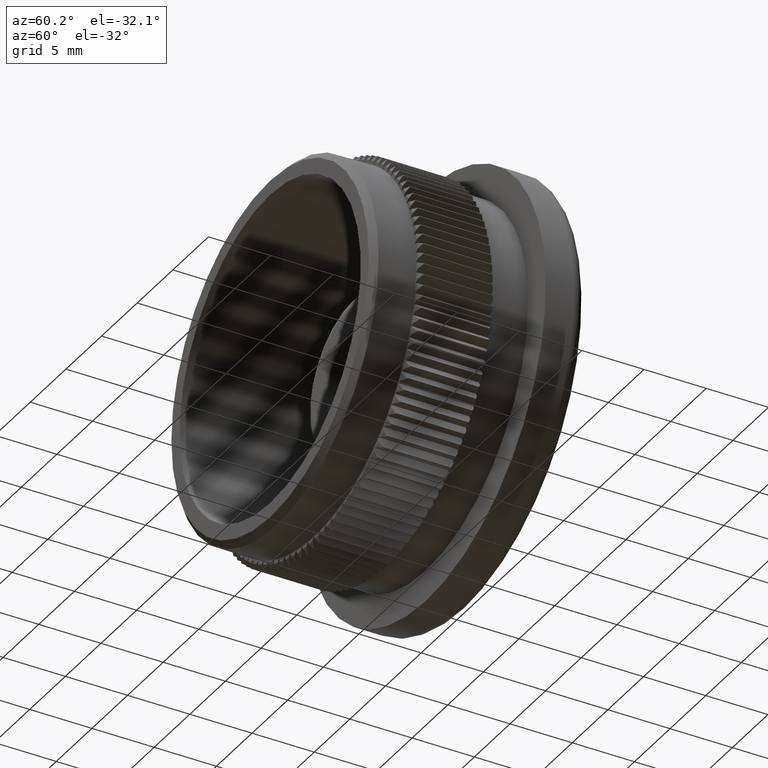
[diagram: clean part render]
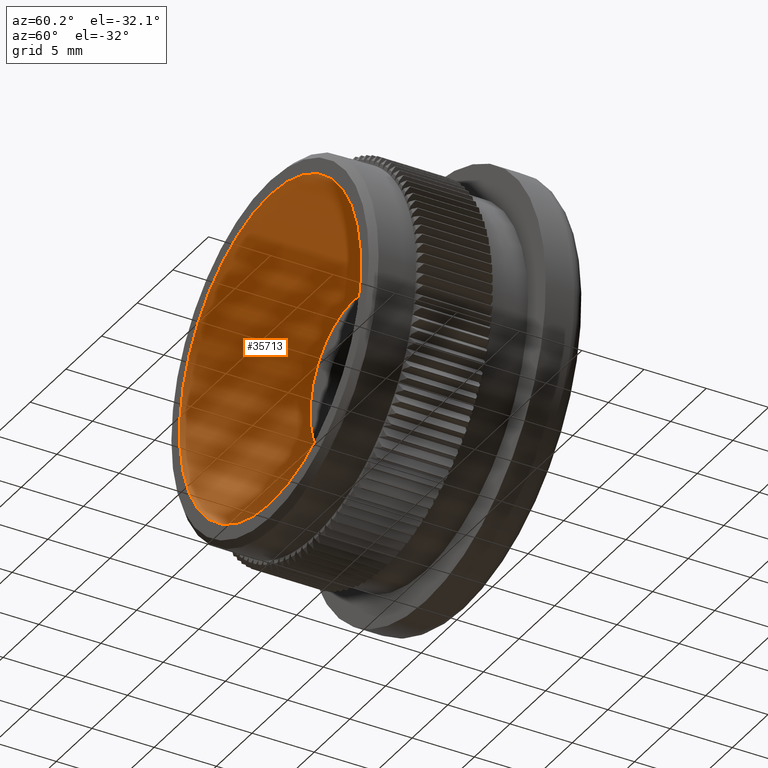
[diagram: same view with one face highlighted and labeled with its STEP entity id]
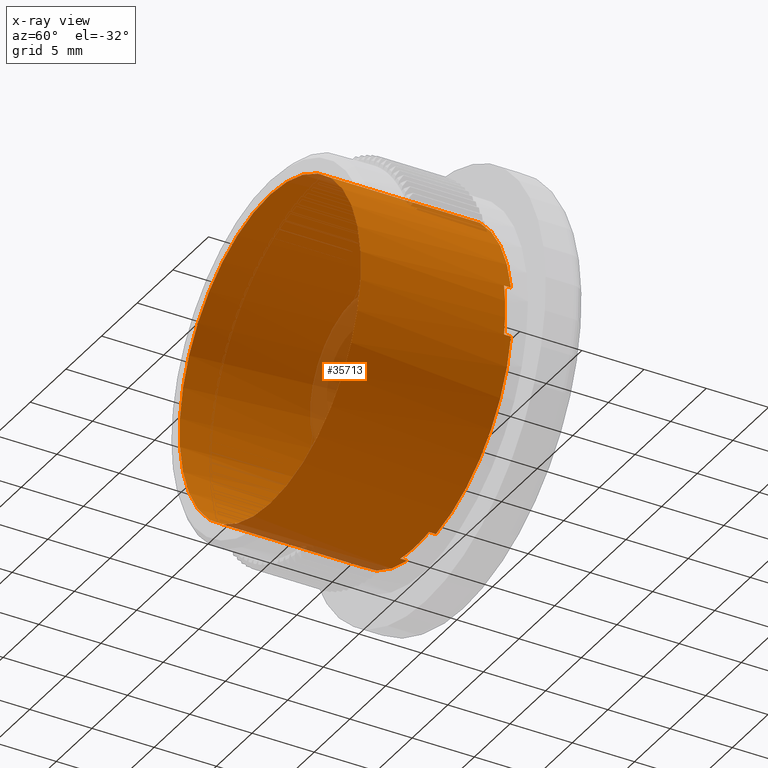
[diagram: x-ray of the same camera — body ghosted, the highlighted face saturated]
A machine part, auxiliary view. The second image highlights one B-rep face of the part: STEP entity #35713.
The next image is the same camera in x-ray: the body ghosted, the highlighted face saturated — about 4% of this face is hidden behind the body in this view.
In plain terms, the highlighted cylindrical surface (bore or boss wall) has radius 12.7 mm, axis along (-0, -1, -0).
Its self-contained STEP definition (entity closure, byte-faithful):
#191 = ORIENTED_EDGE ( 'NONE', *, *, #25303, .F. ) ;
#762 = VECTOR ( 'NONE', #6013, 1000.000000000000000 ) ;
#931 = DIRECTION ( 'NONE',  ( 0.0000000000000000000, 1.000000000000000000, 0.0000000000000000000 ) ) ;
#1438 = DIRECTION ( 'NONE',  ( 0.0000000000000000000, 0.0000000000000000000, -1.000000000000000000 ) ) ;
#1505 = CARTESIAN_POINT ( 'NONE',  ( -12.54023346826817000, 11.61928906477917600, -2.008119658119657200 ) ) ;
#1765 = CARTESIAN_POINT ( 'NONE',  ( 0.0000000000000000000, 12.17357016488715400, 0.0000000000000000000 ) ) ;
#1833 = CARTESIAN_POINT ( 'NONE',  ( 2.008119658119662500, 12.17357016488715400, 12.54023346826817900 ) ) ;
#2034 = CIRCLE ( 'NONE', #28945, 12.69999999999999000 ) ;
#2266 = ORIENTED_EDGE ( 'NONE', *, *, #7292, .T. ) ;
#2454 = DIRECTION ( 'NONE',  ( -0.0000000000000000000, -1.000000000000000000, -0.0000000000000000000 ) ) ;
#3006 = CARTESIAN_POINT ( 'NONE',  ( -12.54023346826817900, 15.50000000000000000, -2.008119658119658500 ) ) ;
#3869 = CARTESIAN_POINT ( 'NONE',  ( -12.54023346826817900, 11.61928906477917600, 2.008119658119658500 ) ) ;
#3899 = DIRECTION ( 'NONE',  ( -0.0000000000000000000, -1.000000000000000000, -0.0000000000000000000 ) ) ;
#4029 = CARTESIAN_POINT ( 'NONE',  ( 0.0000000000000000000, 0.0000000000000000000, 0.0000000000000000000 ) ) ;
#4063 = VERTEX_POINT ( 'NONE', #1833 ) ;
#4489 = ORIENTED_EDGE ( 'NONE', *, *, #36933, .T. ) ;
#5067 = ORIENTED_EDGE ( 'NONE', *, *, #27001, .F. ) ;
#5120 = DIRECTION ( 'NONE',  ( -0.0000000000000000000, -1.000000000000000000, -0.0000000000000000000 ) ) ;
#5187 = DIRECTION ( 'NONE',  ( 0.0000000000000000000, 1.000000000000000000, 0.0000000000000000000 ) ) ;
#5494 = CARTESIAN_POINT ( 'NONE',  ( 12.54023346826817900, 12.17357016488715400, 2.008119658119658500 ) ) ;
#5910 = DIRECTION ( 'NONE',  ( 0.0000000000000000000, 1.000000000000000000, 0.0000000000000000000 ) ) ;
#5931 = AXIS2_PLACEMENT_3D ( 'NONE', #1765, #34976, #16442 ) ;
#6012 = DIRECTION ( 'NONE',  ( 0.0000000000000000000, 0.0000000000000000000, -1.000000000000000000 ) ) ;
#6013 = DIRECTION ( 'NONE',  ( -0.0000000000000000000, -1.000000000000000000, -0.0000000000000000000 ) ) ;
#6270 = DIRECTION ( 'NONE',  ( 0.0000000000000000000, 0.0000000000000000000, -1.000000000000000000 ) ) ;
#6574 = CARTESIAN_POINT ( 'NONE',  ( 0.0000000000000000000, 11.61928906477917600, 0.0000000000000000000 ) ) ;
#6589 = CIRCLE ( 'NONE', #32563, 12.69999999999999900 ) ;
#6658 = ORIENTED_EDGE ( 'NONE', *, *, #24375, .T. ) ;
#7129 = CIRCLE ( 'NONE', #32555, 12.69999999999999000 ) ;
#7292 = EDGE_CURVE ( 'NONE', #36549, #8297, #32598, .T. ) ;
#7571 = AXIS2_PLACEMENT_3D ( 'NONE', #15302, #33821, #6270 ) ;
#8147 = AXIS2_PLACEMENT_3D ( 'NONE', #6574, #27182, #12483 ) ;
#8173 = DIRECTION ( 'NONE',  ( -0.0000000000000000000, -1.000000000000000000, -0.0000000000000000000 ) ) ;
#8297 = VERTEX_POINT ( 'NONE', #13056 ) ;
#8939 = CARTESIAN_POINT ( 'NONE',  ( 2.008119658119662100, 15.50000000000000000, -12.54023346826817900 ) ) ;
#9273 = EDGE_CURVE ( 'NONE', #4063, #24258, #31999, .T. ) ;
#9448 = VERTEX_POINT ( 'NONE', #17345 ) ;
#9759 = VECTOR ( 'NONE', #16856, 1000.000000000000000 ) ;
#9984 = CARTESIAN_POINT ( 'NONE',  ( 0.0000000000000000000, 12.17357016488715400, 0.0000000000000000000 ) ) ;
#10180 = CARTESIAN_POINT ( 'NONE',  ( -2.008119658119654500, 15.50000000000000000, 12.54023346826818000 ) ) ;
#10205 = LINE ( 'NONE', #11355, #9759 ) ;
#10584 = LINE ( 'NONE', #14920, #24683 ) ;
#10668 = VERTEX_POINT ( 'NONE', #3869 ) ;
#11355 = CARTESIAN_POINT ( 'NONE',  ( 12.54023346826817900, 15.50000000000000000, -2.008119658119658500 ) ) ;
#11464 = ORIENTED_EDGE ( 'NONE', *, *, #19561, .F. ) ;
#11531 = CARTESIAN_POINT ( 'NONE',  ( 0.0000000000000000000, 11.61928906477917600, 0.0000000000000000000 ) ) ;
#12083 = CARTESIAN_POINT ( 'NONE',  ( -2.008119658119654100, 15.50000000000000000, -12.54023346826818000 ) ) ;
#12483 = DIRECTION ( 'NONE',  ( 0.0000000000000000000, 0.0000000000000000000, -1.000000000000000000 ) ) ;
#12743 = EDGE_CURVE ( 'NONE', #31035, #16532, #21588, .T. ) ;
#12831 = CIRCLE ( 'NONE', #8147, 12.69999999999999000 ) ;
#12920 = VERTEX_POINT ( 'NONE', #28451 ) ;
#13056 = CARTESIAN_POINT ( 'NONE',  ( -2.008119658119655000, 12.17357016488715400, 12.54023346826818000 ) ) ;
#13293 = DIRECTION ( 'NONE',  ( 0.0000000000000000000, 1.000000000000000000, 0.0000000000000000000 ) ) ;
#13853 = AXIS2_PLACEMENT_3D ( 'NONE', #32629, #5187, #20533 ) ;
#14097 = VECTOR ( 'NONE', #5120, 1000.000000000000000 ) ;
#14873 = AXIS2_PLACEMENT_3D ( 'NONE', #4029, #3899, #33951 ) ;
#14920 = CARTESIAN_POINT ( 'NONE',  ( -12.54023346826817900, 15.50000000000000000, 2.008119658119658500 ) ) ;
#15031 = LINE ( 'NONE', #19944, #14097 ) ;
#15049 = AXIS2_PLACEMENT_3D ( 'NONE', #11531, #24033, #6012 ) ;
#15271 = CARTESIAN_POINT ( 'NONE',  ( -12.54023346826817900, 12.17357016488715400, -2.008119658119658500 ) ) ;
#15302 = CARTESIAN_POINT ( 'NONE',  ( 0.0000000000000000000, 15.50000000000000000, 0.0000000000000000000 ) ) ;
#15716 = VECTOR ( 'NONE', #5910, 1000.000000000000000 ) ;
#15929 = VERTEX_POINT ( 'NONE', #38329 ) ;
#15997 = FACE_OUTER_BOUND ( 'NONE', #28969, .T. ) ;
#16099 = ORIENTED_EDGE ( 'NONE', *, *, #21372, .F. ) ;
#16442 = DIRECTION ( 'NONE',  ( 8.881784197001252300E-016, 0.0000000000000000000, -1.000000000000000000 ) ) ;
#16532 = VERTEX_POINT ( 'NONE', #1505 ) ;
#16687 = LINE ( 'NONE', #8939, #762 ) ;
#16843 = CIRCLE ( 'NONE', #13853, 12.69999999999999900 ) ;
#16856 = DIRECTION ( 'NONE',  ( 0.0000000000000000000, 1.000000000000000000, 0.0000000000000000000 ) ) ;
#17345 = CARTESIAN_POINT ( 'NONE',  ( 12.54023346826817900, 11.61928906477917600, -2.008119658119658500 ) ) ;
#18240 = EDGE_CURVE ( 'NONE', #33156, #20108, #24681, .T. ) ;
#18714 = ORIENTED_EDGE ( 'NONE', *, *, #38239, .T. ) ;
#18869 = EDGE_CURVE ( 'NONE', #25217, #4063, #34505, .T. ) ;
#19561 = EDGE_CURVE ( 'NONE', #10668, #16532, #12831, .T. ) ;
#19944 = CARTESIAN_POINT ( 'NONE',  ( 12.54023346826817900, 15.50000000000000000, 2.008119658119658500 ) ) ;
#20100 = ORIENTED_EDGE ( 'NONE', *, *, #12743, .T. ) ;
#20108 = VERTEX_POINT ( 'NONE', #31323 ) ;
#20288 = DIRECTION ( 'NONE',  ( 0.0000000000000000000, 0.0000000000000000000, -1.000000000000000000 ) ) ;
#20533 = DIRECTION ( 'NONE',  ( -1.776356839400250500E-015, 0.0000000000000000000, -1.000000000000000000 ) ) ;
#20695 = CARTESIAN_POINT ( 'NONE',  ( -12.54023346826817900, 12.17357016488715400, 2.008119658119658500 ) ) ;
#21283 = ORIENTED_EDGE ( 'NONE', *, *, #30449, .T. ) ;
#21372 = EDGE_CURVE ( 'NONE', #9448, #30911, #7129, .T. ) ;
#21588 = LINE ( 'NONE', #3006, #34752 ) ;
#22326 = CARTESIAN_POINT ( 'NONE',  ( 0.0000000000000000000, 0.0000000000000000000, -12.69999999999999900 ) ) ;
#22504 = LINE ( 'NONE', #10180, #25342 ) ;
#23129 = CARTESIAN_POINT ( 'NONE',  ( 2.008119658119662500, 11.61928906477917600, 12.54023346826817900 ) ) ;
#23395 = EDGE_CURVE ( 'NONE', #9448, #12920, #10205, .T. ) ;
#23898 = DIRECTION ( 'NONE',  ( 0.0000000000000000000, 1.000000000000000000, 0.0000000000000000000 ) ) ;
#24033 = DIRECTION ( 'NONE',  ( -0.0000000000000000000, -1.000000000000000000, -0.0000000000000000000 ) ) ;
#24087 = CARTESIAN_POINT ( 'NONE',  ( -2.008119658119654100, 11.61928906477917600, 12.54023346826817200 ) ) ;
#24258 = VERTEX_POINT ( 'NONE', #5494 ) ;
#24350 = CIRCLE ( 'NONE', #14873, 12.69999999999999900 ) ;
#24375 = EDGE_CURVE ( 'NONE', #15929, #28855, #16687, .T. ) ;
#24681 = LINE ( 'NONE', #12083, #15716 ) ;
#24683 = VECTOR ( 'NONE', #23898, 1000.000000000000000 ) ;
#25217 = VERTEX_POINT ( 'NONE', #23129 ) ;
#25300 = EDGE_CURVE ( 'NONE', #10668, #36549, #10584, .T. ) ;
#25303 = EDGE_CURVE ( 'NONE', #33156, #28855, #30758, .T. ) ;
#25342 = VECTOR ( 'NONE', #25405, 1000.000000000000000 ) ;
#25349 = ORIENTED_EDGE ( 'NONE', *, *, #25300, .T. ) ;
#25405 = DIRECTION ( 'NONE',  ( -0.0000000000000000000, -1.000000000000000000, -0.0000000000000000000 ) ) ;
#26522 = VECTOR ( 'NONE', #28576, 1000.000000000000000 ) ;
#27001 = EDGE_CURVE ( 'NONE', #25217, #33353, #2034, .T. ) ;
#27182 = DIRECTION ( 'NONE',  ( -0.0000000000000000000, -1.000000000000000000, -0.0000000000000000000 ) ) ;
#27269 = FACE_OUTER_BOUND ( 'NONE', #36097, .T. ) ;
#27274 = DIRECTION ( 'NONE',  ( -0.0000000000000000000, -1.000000000000000000, -0.0000000000000000000 ) ) ;
#27989 = DIRECTION ( 'NONE',  ( 0.0000000000000000000, 0.0000000000000000000, -1.000000000000000000 ) ) ;
#28065 = VERTEX_POINT ( 'NONE', #22326 ) ;
#28451 = CARTESIAN_POINT ( 'NONE',  ( 12.54023346826817900, 12.17357016488715400, -2.008119658119658500 ) ) ;
#28576 = DIRECTION ( 'NONE',  ( 0.0000000000000000000, 1.000000000000000000, 0.0000000000000000000 ) ) ;
#28855 = VERTEX_POINT ( 'NONE', #36569 ) ;
#28945 = AXIS2_PLACEMENT_3D ( 'NONE', #28989, #2454, #20288 ) ;
#28969 = EDGE_LOOP ( 'NONE', ( #4489, #6658, #191, #37309, #29856, #20100, #11464, #25349, #2266, #35742, #5067, #35237, #30994, #21283, #16099, #31190 ) ) ;
#28989 = CARTESIAN_POINT ( 'NONE',  ( 0.0000000000000000000, 11.61928906477917600, 0.0000000000000000000 ) ) ;
#29856 = ORIENTED_EDGE ( 'NONE', *, *, #30646, .T. ) ;
#30449 = EDGE_CURVE ( 'NONE', #24258, #30911, #15031, .T. ) ;
#30646 = EDGE_CURVE ( 'NONE', #20108, #31035, #6589, .T. ) ;
#30758 = CIRCLE ( 'NONE', #15049, 12.69999999999999000 ) ;
#30911 = VERTEX_POINT ( 'NONE', #32642 ) ;
#30994 = ORIENTED_EDGE ( 'NONE', *, *, #9273, .T. ) ;
#31035 = VERTEX_POINT ( 'NONE', #15271 ) ;
#31190 = ORIENTED_EDGE ( 'NONE', *, *, #23395, .T. ) ;
#31323 = CARTESIAN_POINT ( 'NONE',  ( -2.008119658119654500, 12.17357016488715400, -12.54023346826818000 ) ) ;
#31950 = CARTESIAN_POINT ( 'NONE',  ( -2.008119658119654500, 11.61928906477917600, -12.54023346826818000 ) ) ;
#31999 = CIRCLE ( 'NONE', #5931, 12.69999999999999900 ) ;
#32555 = AXIS2_PLACEMENT_3D ( 'NONE', #38697, #8173, #35313 ) ;
#32563 = AXIS2_PLACEMENT_3D ( 'NONE', #9984, #931, #1438 ) ;
#32598 = CIRCLE ( 'NONE', #38078, 12.69999999999999900 ) ;
#32629 = CARTESIAN_POINT ( 'NONE',  ( 0.0000000000000000000, 12.17357016488715400, 0.0000000000000000000 ) ) ;
#32642 = CARTESIAN_POINT ( 'NONE',  ( 12.54023346826817000, 11.61928906477917600, 2.008119658119657200 ) ) ;
#33156 = VERTEX_POINT ( 'NONE', #31950 ) ;
#33353 = VERTEX_POINT ( 'NONE', #24087 ) ;
#33821 = DIRECTION ( 'NONE',  ( -0.0000000000000000000, -1.000000000000000000, -0.0000000000000000000 ) ) ;
#33951 = DIRECTION ( 'NONE',  ( 0.0000000000000000000, 0.0000000000000000000, -1.000000000000000000 ) ) ;
#34505 = LINE ( 'NONE', #37740, #26522 ) ;
#34752 = VECTOR ( 'NONE', #27274, 1000.000000000000000 ) ;
#34818 = CYLINDRICAL_SURFACE ( 'NONE', #7571, 12.69999999999999900 ) ;
#34976 = DIRECTION ( 'NONE',  ( 0.0000000000000000000, 1.000000000000000000, 0.0000000000000000000 ) ) ;
#35237 = ORIENTED_EDGE ( 'NONE', *, *, #18869, .T. ) ;
#35313 = DIRECTION ( 'NONE',  ( 0.0000000000000000000, 0.0000000000000000000, -1.000000000000000000 ) ) ;
#35713 = ADVANCED_FACE ( 'NONE', ( #15997, #27269 ), #34818, .F. ) ;
#35742 = ORIENTED_EDGE ( 'NONE', *, *, #37246, .T. ) ;
#36097 = EDGE_LOOP ( 'NONE', ( #18714 ) ) ;
#36549 = VERTEX_POINT ( 'NONE', #20695 ) ;
#36569 = CARTESIAN_POINT ( 'NONE',  ( 2.008119658119660800, 11.61928906477917600, -12.54023346826817000 ) ) ;
#36933 = EDGE_CURVE ( 'NONE', #12920, #15929, #16843, .T. ) ;
#37246 = EDGE_CURVE ( 'NONE', #8297, #33353, #22504, .T. ) ;
#37309 = ORIENTED_EDGE ( 'NONE', *, *, #18240, .T. ) ;
#37560 = CARTESIAN_POINT ( 'NONE',  ( 0.0000000000000000000, 12.17357016488715400, 0.0000000000000000000 ) ) ;
#37740 = CARTESIAN_POINT ( 'NONE',  ( 2.008119658119663000, 15.50000000000000000, 12.54023346826817900 ) ) ;
#38078 = AXIS2_PLACEMENT_3D ( 'NONE', #37560, #13293, #27989 ) ;
#38239 = EDGE_CURVE ( 'NONE', #28065, #28065, #24350, .T. ) ;
#38329 = CARTESIAN_POINT ( 'NONE',  ( 2.008119658119662100, 12.17357016488715400, -12.54023346826817900 ) ) ;
#38697 = CARTESIAN_POINT ( 'NONE',  ( 0.0000000000000000000, 11.61928906477917600, 0.0000000000000000000 ) ) ;